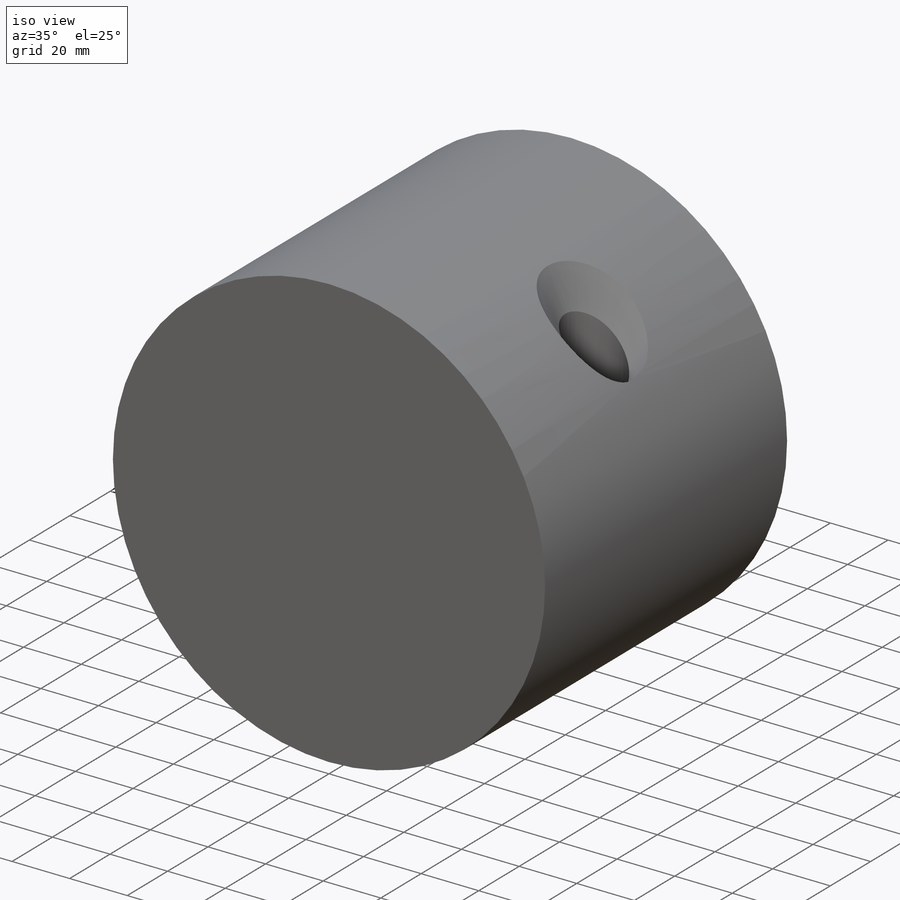
[diagram: iso view]
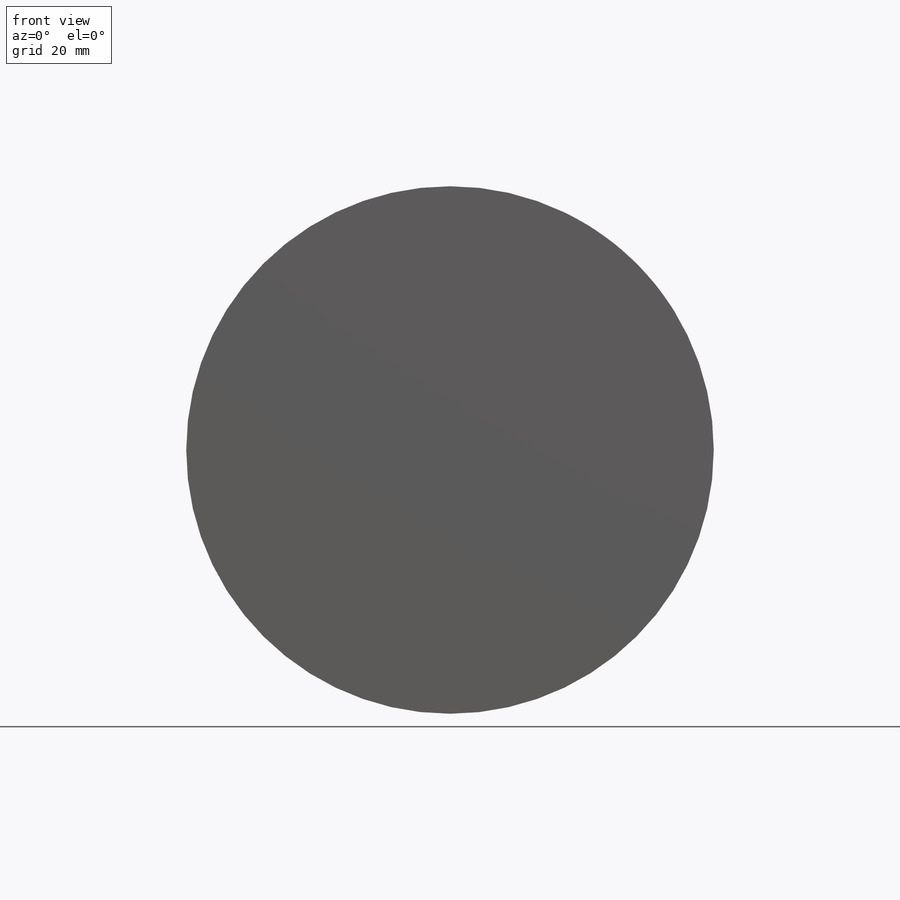
[diagram: front view]
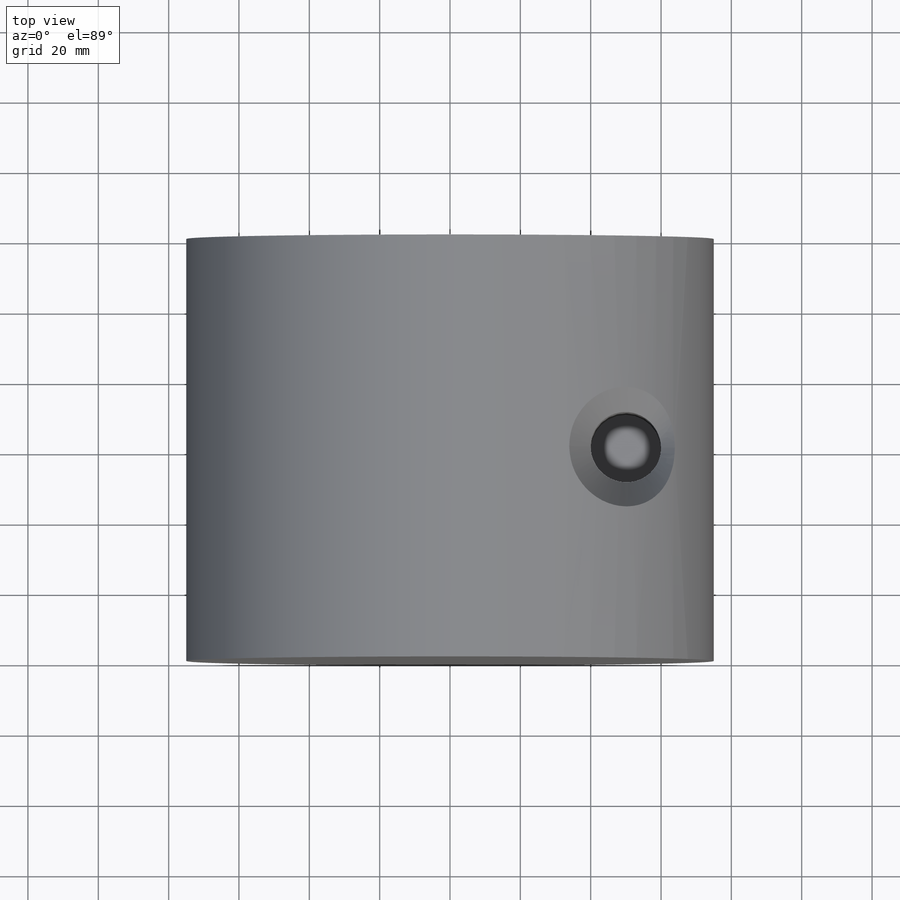
[diagram: top view]
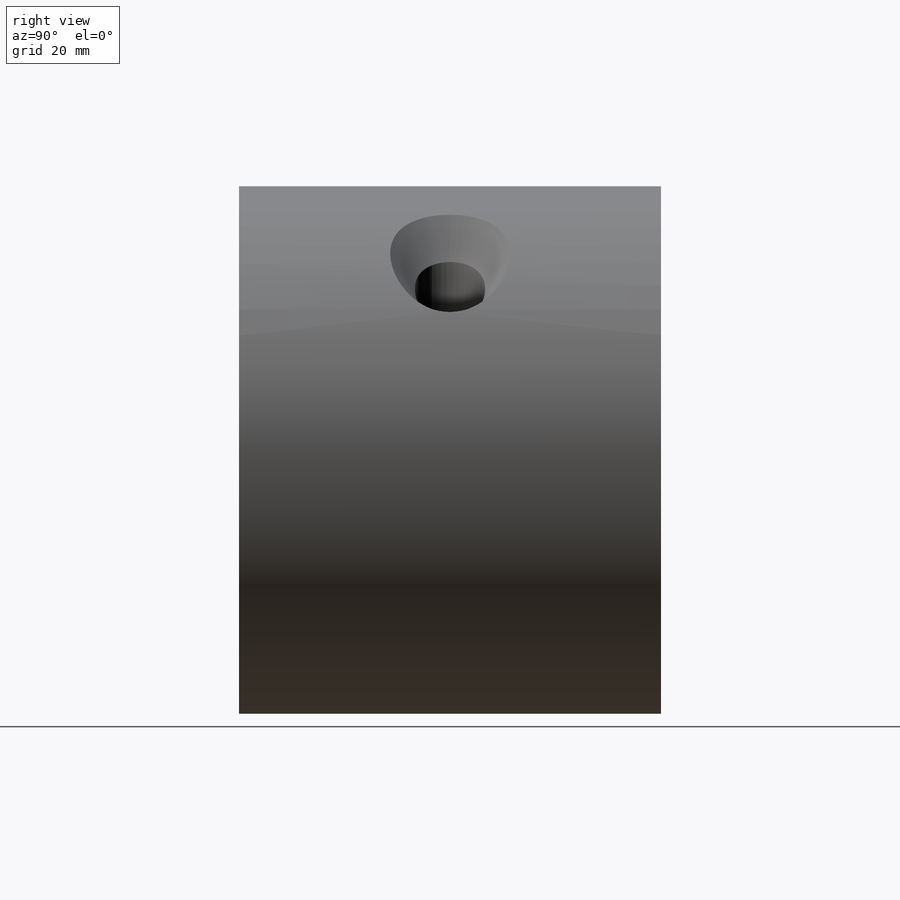
[diagram: right view]
SOLIDWORKS PART (.sldprt)
format: sldprt  version: not decoded by parser v0  size: 271,872 bytes
history: native  units: mm
features: sketch x6, plane x3, material x1, extrude x1, cut_revolve x1, surface_op x1, mirror x1, fillet x1, delete_body x1 + 4 further entries (+8 scaffold rows collapsed)
feature tree (28):
  scaffold x8  (default folders/planes/origin — collapsed)
  material  "Allgemein"
  plane  "Vorderansicht"
  plane  "Draufsicht"
  plane  "Seitenansicht"
  "Y-Achse"
  "Z-Achse"
  sketch  "Skizze1"  dims[c1.D1=150.0mm c1.D7=100.0mm c1.D3=150.0mm c1.D2=20.0mm c2.D3=~8.708712mm c2.D4=~7.913882mm c2.D5=~6.80192mm c2.D6=~6.097581mm c2.D7=~17.552403mm c3.D3=50.0mm]
  sketch  "Skizze2"
  extrude  "Aufsatz-Linear austragen1"  Depth=60mm
  sketch  "Skizze3"  dims[D1=~45.909296mm D2=10.0mm]
  cut_revolve  "Schnitt-Rotation1"  Angle=360deg
  sketch  "Skizze5"
  surface_op  "Oberfläche-Linear austragen1"
  sketch  "Skizze4"
  "Trennlinie1"
  sketch  "Skizze6"
  "Trennlinie6"
  mirror  "Spiegeln1"
  fillet  "Verrundung2"  Radius=5mm
  delete_body  "Körper-Löschen1"
decode coverage: 5 of 12 modeling features carry decoded parameters; 4 rows unclassified (native names shown)
note: ~ marks probable driven/reference dimensions
note: suppression state not decoded; provenance and decode notes live in map.json
